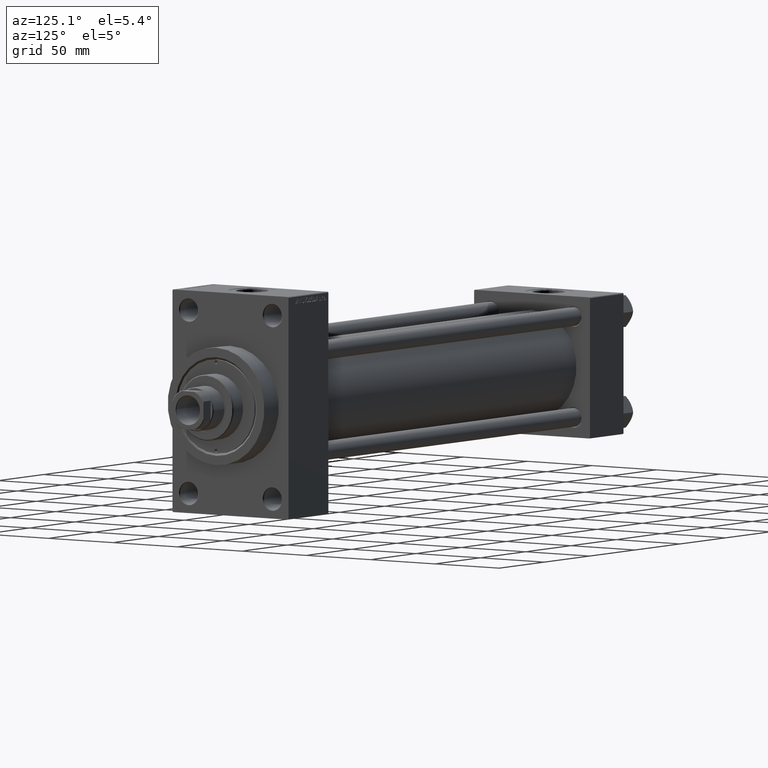
[diagram: clean part render]
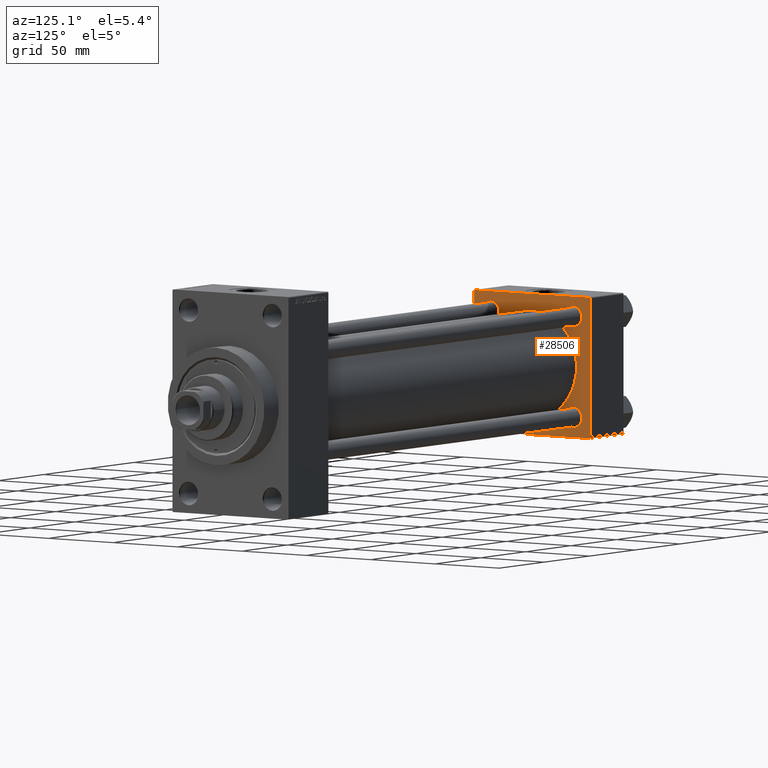
[diagram: same view with one face highlighted and labeled with its STEP entity id]
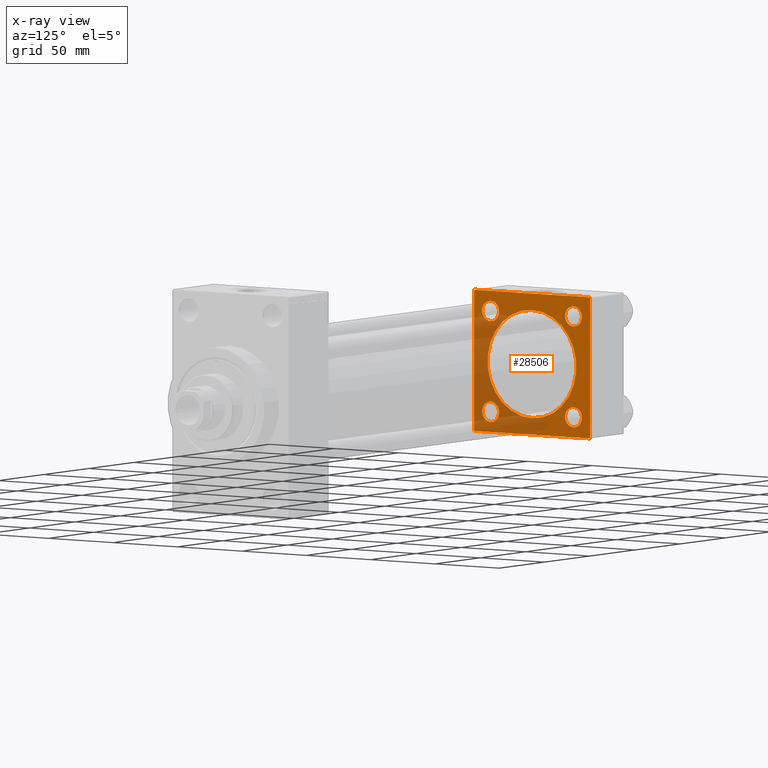
[diagram: x-ray of the same camera — body ghosted, the highlighted face saturated]
A machine part, auxiliary view. The second image highlights one B-rep face of the part: STEP entity #28506.
The next image is the same camera in x-ray: the body ghosted, the highlighted face saturated — about 39% of this face is hidden behind the body in this view.
In plain terms, the highlighted planar face has unit normal (-1, 0, 0).
Its self-contained STEP definition (entity closure, byte-faithful):
#172 = EDGE_CURVE ( 'NONE', #46128, #20892, #8371, .T. ) ;
#687 = CARTESIAN_POINT ( 'NONE',  ( 37.00000000000000000, -45.00000000000000711, 44.49999999999997158 ) ) ;
#839 = CARTESIAN_POINT ( 'NONE',  ( 37.00000000000000000, -32.14999999999997726, -38.65000000000001990 ) ) ;
#1655 = VERTEX_POINT ( 'NONE', #839 ) ;
#1965 = CARTESIAN_POINT ( 'NONE',  ( 37.00000000000000000, 32.14999999999999147, 32.15000000000000568 ) ) ;
#2425 = DIRECTION ( 'NONE',  ( -0.000000000000000000, 0.000000000000000000, 1.000000000000000000 ) ) ;
#2684 = DIRECTION ( 'NONE',  ( 0.000000000000000000, 0.000000000000000000, 1.000000000000000000 ) ) ;
#2734 = EDGE_CURVE ( 'NONE', #27237, #13420, #22451, .T. ) ;
#3021 = CARTESIAN_POINT ( 'NONE',  ( 37.00000000000000000, -32.14999999999997726, -32.15000000000001279 ) ) ;
#3140 = AXIS2_PLACEMENT_3D ( 'NONE', #3021, #31817, #13814 ) ;
#3244 = DIRECTION ( 'NONE',  ( 0.000000000000000000, 0.7071067811865474617, -0.7071067811865474617 ) ) ;
#4543 = CIRCLE ( 'NONE', #36713, 6.499999999999950262 ) ;
#4931 = CARTESIAN_POINT ( 'NONE',  ( 37.00000000000000000, 44.99999999999998579, 45.00000000000001421 ) ) ;
#5358 = EDGE_CURVE ( 'NONE', #29291, #31905, #4543, .T. ) ;
#6357 = CARTESIAN_POINT ( 'NONE',  ( 36.99999999999997868, -2.602085213965210642E-15, 34.50000000000000000 ) ) ;
#6598 = ORIENTED_EDGE ( 'NONE', *, *, #24532, .F. ) ;
#6770 = VERTEX_POINT ( 'NONE', #687 ) ;
#6794 = DIRECTION ( 'NONE',  ( 1.000000000000000000, -0.000000000000000000, 0.000000000000000000 ) ) ;
#7075 = CARTESIAN_POINT ( 'NONE',  ( 37.00000000000000000, 32.14999999999999147, -38.64999999999995595 ) ) ;
#7156 = DIRECTION ( 'NONE',  ( -1.000000000000000000, 0.000000000000000000, -0.000000000000000000 ) ) ;
#7416 = EDGE_LOOP ( 'NONE', ( #37779, #46985 ) ) ;
#7728 = CIRCLE ( 'NONE', #10017, 6.499999999999950262 ) ;
#8371 = LINE ( 'NONE', #10588, #18169 ) ;
#8539 = AXIS2_PLACEMENT_3D ( 'NONE', #16814, #24495, #2425 ) ;
#9258 = EDGE_CURVE ( 'NONE', #41846, #27196, #7728, .T. ) ;
#9463 = EDGE_CURVE ( 'NONE', #19214, #1655, #27659, .T. ) ;
#9827 = EDGE_LOOP ( 'NONE', ( #28246, #36075 ) ) ;
#9966 = ORIENTED_EDGE ( 'NONE', *, *, #42281, .F. ) ;
#10017 = AXIS2_PLACEMENT_3D ( 'NONE', #32807, #7156, #18427 ) ;
#10588 = CARTESIAN_POINT ( 'NONE',  ( 37.00000000000000000, 44.99999999999998579, -44.99999999999998579 ) ) ;
#10615 = DIRECTION ( 'NONE',  ( 0.000000000000000000, 0.000000000000000000, 1.000000000000000000 ) ) ;
#11220 = DIRECTION ( 'NONE',  ( 0.000000000000000000, 0.000000000000000000, 1.000000000000000000 ) ) ;
#11461 = ORIENTED_EDGE ( 'NONE', *, *, #27834, .T. ) ;
#11554 = EDGE_CURVE ( 'NONE', #17809, #27237, #31597, .T. ) ;
#11703 = CARTESIAN_POINT ( 'NONE',  ( 37.00000000000000000, 32.14999999999999147, -32.15000000000000568 ) ) ;
#11914 = LINE ( 'NONE', #36633, #26029 ) ;
#12001 = AXIS2_PLACEMENT_3D ( 'NONE', #13977, #13742, #47062 ) ;
#12130 = DIRECTION ( 'NONE',  ( -1.000000000000000000, 0.000000000000000000, -0.000000000000000000 ) ) ;
#13031 = DIRECTION ( 'NONE',  ( -1.000000000000000000, 0.000000000000000000, -0.000000000000000000 ) ) ;
#13272 = VERTEX_POINT ( 'NONE', #37742 ) ;
#13310 = ORIENTED_EDGE ( 'NONE', *, *, #17277, .T. ) ;
#13420 = VERTEX_POINT ( 'NONE', #36031 ) ;
#13440 = CARTESIAN_POINT ( 'NONE',  ( 37.00000000000000000, -45.00000000000000000, -44.49999999999995737 ) ) ;
#13541 = VERTEX_POINT ( 'NONE', #33147 ) ;
#13591 = DIRECTION ( 'NONE',  ( 0.000000000000000000, -0.7071067811865474617, 0.7071067811865474617 ) ) ;
#13650 = VECTOR ( 'NONE', #29635, 1000.000000000000000 ) ;
#13742 = DIRECTION ( 'NONE',  ( -1.000000000000000000, 0.000000000000000000, -0.000000000000000000 ) ) ;
#13797 = CARTESIAN_POINT ( 'NONE',  ( 37.00000000000000000, -44.49999999999998579, -45.00000000000000000 ) ) ;
#13814 = DIRECTION ( 'NONE',  ( 0.000000000000000000, 0.000000000000000000, 1.000000000000000000 ) ) ;
#13977 = CARTESIAN_POINT ( 'NONE',  ( 37.00000000000000000, -32.14999999999997726, -32.15000000000001279 ) ) ;
#14191 = EDGE_CURVE ( 'NONE', #1655, #19214, #29655, .T. ) ;
#15863 = CARTESIAN_POINT ( 'NONE',  ( 37.00000000000000000, 32.14999999999999147, 38.64999999999995595 ) ) ;
#15882 = CARTESIAN_POINT ( 'NONE',  ( 37.00000000000000000, 44.99999999999998579, -44.49999999999995737 ) ) ;
#16027 = AXIS2_PLACEMENT_3D ( 'NONE', #11703, #44807, #11220 ) ;
#16814 = CARTESIAN_POINT ( 'NONE',  ( 37.00000000000000000, 0.000000000000000000, 0.000000000000000000 ) ) ;
#17181 = CARTESIAN_POINT ( 'NONE',  ( 36.99999999999997868, 1.622946243093158675E-15, -34.50000000000000000 ) ) ;
#17277 = EDGE_CURVE ( 'NONE', #31905, #29291, #37417, .T. ) ;
#17809 = VERTEX_POINT ( 'NONE', #21118 ) ;
#17876 = CARTESIAN_POINT ( 'NONE',  ( 37.00000000000000000, 44.99999999999998579, -44.49999999999998579 ) ) ;
#18089 = ORIENTED_EDGE ( 'NONE', *, *, #9258, .T. ) ;
#18169 = VECTOR ( 'NONE', #37625, 1000.000000000000000 ) ;
#18251 = CARTESIAN_POINT ( 'NONE',  ( 37.00000000000000000, -32.14999999999997726, -25.65000000000000568 ) ) ;
#18427 = DIRECTION ( 'NONE',  ( 0.000000000000000000, 0.000000000000000000, 1.000000000000000000 ) ) ;
#19214 = VERTEX_POINT ( 'NONE', #18251 ) ;
#19298 = ORIENTED_EDGE ( 'NONE', *, *, #35598, .T. ) ;
#19401 = ORIENTED_EDGE ( 'NONE', *, *, #11554, .T. ) ;
#19592 = VERTEX_POINT ( 'NONE', #6357 ) ;
#20053 = EDGE_LOOP ( 'NONE', ( #41398, #6598 ) ) ;
#20400 = EDGE_CURVE ( 'NONE', #27196, #41846, #30584, .T. ) ;
#20412 = VECTOR ( 'NONE', #47254, 1000.000000000000000 ) ;
#20426 = FACE_BOUND ( 'NONE', #20053, .T. ) ;
#20667 = FACE_BOUND ( 'NONE', #25956, .T. ) ;
#20892 = VERTEX_POINT ( 'NONE', #45608 ) ;
#21118 = CARTESIAN_POINT ( 'NONE',  ( 37.00000000000000000, 44.99999999999998579, 44.50000000000001421 ) ) ;
#21345 = EDGE_CURVE ( 'NONE', #6770, #34529, #11914, .T. ) ;
#21483 = AXIS2_PLACEMENT_3D ( 'NONE', #47296, #6794, #43718 ) ;
#22081 = ORIENTED_EDGE ( 'NONE', *, *, #20400, .T. ) ;
#22451 = LINE ( 'NONE', #4931, #13650 ) ;
#22503 = DIRECTION ( 'NONE',  ( 0.000000000000000000, 7.709882115452476934E-17, -1.000000000000000000 ) ) ;
#23120 = VECTOR ( 'NONE', #3244, 1000.000000000000114 ) ;
#23772 = CIRCLE ( 'NONE', #21483, 34.50000000000000000 ) ;
#23810 = AXIS2_PLACEMENT_3D ( 'NONE', #47076, #43485, #10615 ) ;
#24080 = CARTESIAN_POINT ( 'NONE',  ( 37.00000000000000000, -32.14999999999997726, 32.15000000000001279 ) ) ;
#24253 = FACE_BOUND ( 'NONE', #34958, .T. ) ;
#24495 = DIRECTION ( 'NONE',  ( -1.000000000000000000, 0.000000000000000000, -0.000000000000000000 ) ) ;
#24532 = EDGE_CURVE ( 'NONE', #30531, #19592, #23772, .T. ) ;
#24694 = CARTESIAN_POINT ( 'NONE',  ( 36.99999999999997868, -2.602085213965210642E-15, 0.000000000000000000 ) ) ;
#25682 = ORIENTED_EDGE ( 'NONE', *, *, #27951, .T. ) ;
#25762 = EDGE_CURVE ( 'NONE', #13541, #13272, #44473, .T. ) ;
#25956 = EDGE_LOOP ( 'NONE', ( #13310, #43503 ) ) ;
#26029 = VECTOR ( 'NONE', #22503, 1000.000000000000000 ) ;
#26499 = CARTESIAN_POINT ( 'NONE',  ( 37.00000000000000000, 32.14999999999999147, 25.65000000000005542 ) ) ;
#26786 = DIRECTION ( 'NONE',  ( 0.000000000000000000, 0.000000000000000000, 1.000000000000000000 ) ) ;
#27196 = VERTEX_POINT ( 'NONE', #7075 ) ;
#27237 = VERTEX_POINT ( 'NONE', #43517 ) ;
#27659 = CIRCLE ( 'NONE', #3140, 6.500000000000005329 ) ;
#27711 = CIRCLE ( 'NONE', #35337, 6.500000000000005329 ) ;
#27834 = EDGE_CURVE ( 'NONE', #34529, #20892, #27965, .T. ) ;
#27852 = FACE_BOUND ( 'NONE', #9827, .T. ) ;
#27951 = EDGE_CURVE ( 'NONE', #46128, #42859, #37259, .T. ) ;
#27965 = LINE ( 'NONE', #13797, #23120 ) ;
#28110 = EDGE_CURVE ( 'NONE', #13272, #13541, #27711, .T. ) ;
#28232 = CARTESIAN_POINT ( 'NONE',  ( 37.00000000000000000, 44.49999999999998579, 45.00000000000001421 ) ) ;
#28246 = ORIENTED_EDGE ( 'NONE', *, *, #14191, .T. ) ;
#28323 = PLANE ( 'NONE',  #8539 ) ;
#28506 = ADVANCED_FACE ( 'NONE', ( #27852, #24253, #34809, #20667, #20426, #35281 ), #28323, .F. ) ;
#29233 = DIRECTION ( 'NONE',  ( 1.000000000000000000, -0.000000000000000000, 0.000000000000000000 ) ) ;
#29291 = VERTEX_POINT ( 'NONE', #15863 ) ;
#29635 = DIRECTION ( 'NONE',  ( 0.000000000000000000, -1.000000000000000000, -1.541976423090495387E-16 ) ) ;
#29655 = CIRCLE ( 'NONE', #12001, 6.500000000000005329 ) ;
#29913 = VECTOR ( 'NONE', #13591, 1000.000000000000114 ) ;
#30531 = VERTEX_POINT ( 'NONE', #17181 ) ;
#30584 = CIRCLE ( 'NONE', #16027, 6.499999999999950262 ) ;
#31597 = LINE ( 'NONE', #28232, #29913 ) ;
#31817 = DIRECTION ( 'NONE',  ( -1.000000000000000000, 0.000000000000000000, -0.000000000000000000 ) ) ;
#31905 = VERTEX_POINT ( 'NONE', #26499 ) ;
#32013 = LINE ( 'NONE', #36081, #40071 ) ;
#32501 = DIRECTION ( 'NONE',  ( -0.000000000000000000, 0.7071067811865474617, 0.7071067811865474617 ) ) ;
#32807 = CARTESIAN_POINT ( 'NONE',  ( 37.00000000000000000, 32.14999999999999147, -32.15000000000000568 ) ) ;
#33147 = CARTESIAN_POINT ( 'NONE',  ( 37.00000000000000000, -32.14999999999997726, 38.65000000000001990 ) ) ;
#33833 = VECTOR ( 'NONE', #32501, 1000.000000000000114 ) ;
#34529 = VERTEX_POINT ( 'NONE', #13440 ) ;
#34809 = FACE_BOUND ( 'NONE', #7416, .T. ) ;
#34958 = EDGE_LOOP ( 'NONE', ( #22081, #18089 ) ) ;
#35044 = CIRCLE ( 'NONE', #46441, 34.50000000000000000 ) ;
#35281 = FACE_OUTER_BOUND ( 'NONE', #45116, .T. ) ;
#35337 = AXIS2_PLACEMENT_3D ( 'NONE', #24080, #13031, #42529 ) ;
#35598 = EDGE_CURVE ( 'NONE', #13420, #6770, #32013, .T. ) ;
#35702 = DIRECTION ( 'NONE',  ( 0.000000000000000000, 0.000000000000000000, 1.000000000000000000 ) ) ;
#36031 = CARTESIAN_POINT ( 'NONE',  ( 37.00000000000000000, -44.49999999999995737, 45.00000000000000000 ) ) ;
#36075 = ORIENTED_EDGE ( 'NONE', *, *, #9463, .T. ) ;
#36081 = CARTESIAN_POINT ( 'NONE',  ( 37.00000000000000000, -45.00000000000000711, 44.49999999999997158 ) ) ;
#36633 = CARTESIAN_POINT ( 'NONE',  ( 37.00000000000000000, -45.00000000000000711, 45.00000000000000000 ) ) ;
#36713 = AXIS2_PLACEMENT_3D ( 'NONE', #1965, #42254, #2684 ) ;
#37259 = LINE ( 'NONE', #17876, #33833 ) ;
#37417 = CIRCLE ( 'NONE', #38168, 6.499999999999950262 ) ;
#37625 = DIRECTION ( 'NONE',  ( 0.000000000000000000, -1.000000000000000000, -1.541976423090495633E-16 ) ) ;
#37742 = CARTESIAN_POINT ( 'NONE',  ( 37.00000000000000000, -32.14999999999997726, 25.65000000000000568 ) ) ;
#37779 = ORIENTED_EDGE ( 'NONE', *, *, #28110, .T. ) ;
#38168 = AXIS2_PLACEMENT_3D ( 'NONE', #45483, #12130, #26786 ) ;
#38951 = CARTESIAN_POINT ( 'NONE',  ( 37.00000000000000000, 44.49999999999998579, -44.99999999999998579 ) ) ;
#39436 = DIRECTION ( 'NONE',  ( -0.000000000000000000, -0.7071067811865425767, -0.7071067811865524577 ) ) ;
#39601 = ORIENTED_EDGE ( 'NONE', *, *, #21345, .T. ) ;
#39828 = LINE ( 'NONE', #42968, #20412 ) ;
#40071 = VECTOR ( 'NONE', #39436, 1000.000000000000114 ) ;
#41102 = ORIENTED_EDGE ( 'NONE', *, *, #2734, .T. ) ;
#41398 = ORIENTED_EDGE ( 'NONE', *, *, #42488, .F. ) ;
#41846 = VERTEX_POINT ( 'NONE', #42785 ) ;
#42254 = DIRECTION ( 'NONE',  ( -1.000000000000000000, 0.000000000000000000, -0.000000000000000000 ) ) ;
#42281 = EDGE_CURVE ( 'NONE', #17809, #42859, #39828, .T. ) ;
#42488 = EDGE_CURVE ( 'NONE', #19592, #30531, #35044, .T. ) ;
#42529 = DIRECTION ( 'NONE',  ( 0.000000000000000000, 0.000000000000000000, 1.000000000000000000 ) ) ;
#42785 = CARTESIAN_POINT ( 'NONE',  ( 37.00000000000000000, 32.14999999999999147, -25.65000000000005542 ) ) ;
#42859 = VERTEX_POINT ( 'NONE', #15882 ) ;
#42968 = CARTESIAN_POINT ( 'NONE',  ( 37.00000000000000000, 44.99999999999998579, 45.00000000000001421 ) ) ;
#43485 = DIRECTION ( 'NONE',  ( -1.000000000000000000, 0.000000000000000000, -0.000000000000000000 ) ) ;
#43503 = ORIENTED_EDGE ( 'NONE', *, *, #5358, .T. ) ;
#43517 = CARTESIAN_POINT ( 'NONE',  ( 37.00000000000000000, 44.49999999999998579, 45.00000000000001421 ) ) ;
#43718 = DIRECTION ( 'NONE',  ( 0.000000000000000000, 0.000000000000000000, 1.000000000000000000 ) ) ;
#44473 = CIRCLE ( 'NONE', #23810, 6.500000000000005329 ) ;
#44807 = DIRECTION ( 'NONE',  ( -1.000000000000000000, 0.000000000000000000, -0.000000000000000000 ) ) ;
#45116 = EDGE_LOOP ( 'NONE', ( #45347, #25682, #9966, #19401, #41102, #19298, #39601, #11461 ) ) ;
#45347 = ORIENTED_EDGE ( 'NONE', *, *, #172, .F. ) ;
#45483 = CARTESIAN_POINT ( 'NONE',  ( 37.00000000000000000, 32.14999999999999147, 32.15000000000000568 ) ) ;
#45608 = CARTESIAN_POINT ( 'NONE',  ( 37.00000000000000000, -44.49999999999995737, -45.00000000000000000 ) ) ;
#46128 = VERTEX_POINT ( 'NONE', #38951 ) ;
#46441 = AXIS2_PLACEMENT_3D ( 'NONE', #24694, #29233, #35702 ) ;
#46985 = ORIENTED_EDGE ( 'NONE', *, *, #25762, .T. ) ;
#47062 = DIRECTION ( 'NONE',  ( 0.000000000000000000, 0.000000000000000000, 1.000000000000000000 ) ) ;
#47076 = CARTESIAN_POINT ( 'NONE',  ( 37.00000000000000000, -32.14999999999997726, 32.15000000000001279 ) ) ;
#47254 = DIRECTION ( 'NONE',  ( 0.000000000000000000, 0.000000000000000000, -1.000000000000000000 ) ) ;
#47296 = CARTESIAN_POINT ( 'NONE',  ( 36.99999999999997868, -2.602085213965210642E-15, 0.000000000000000000 ) ) ;